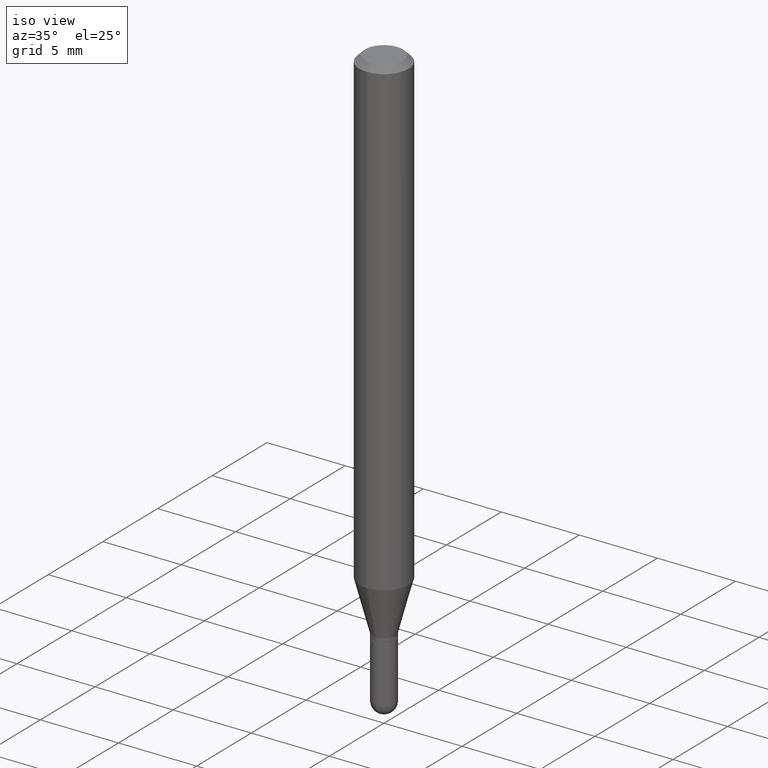
[diagram: clean part render]
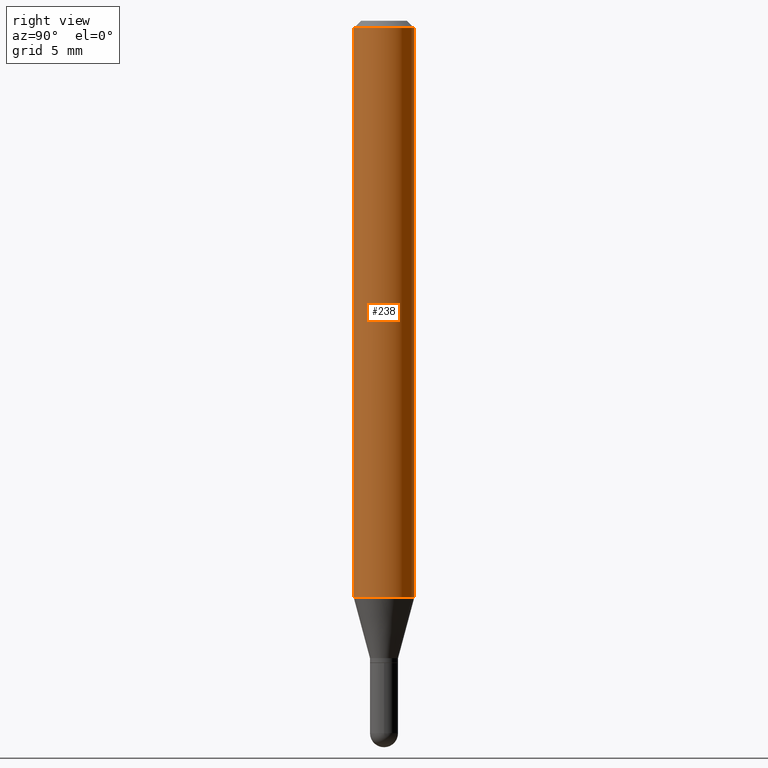
[diagram: tour spotlight — one face highlighted and labeled with its STEP entity id]
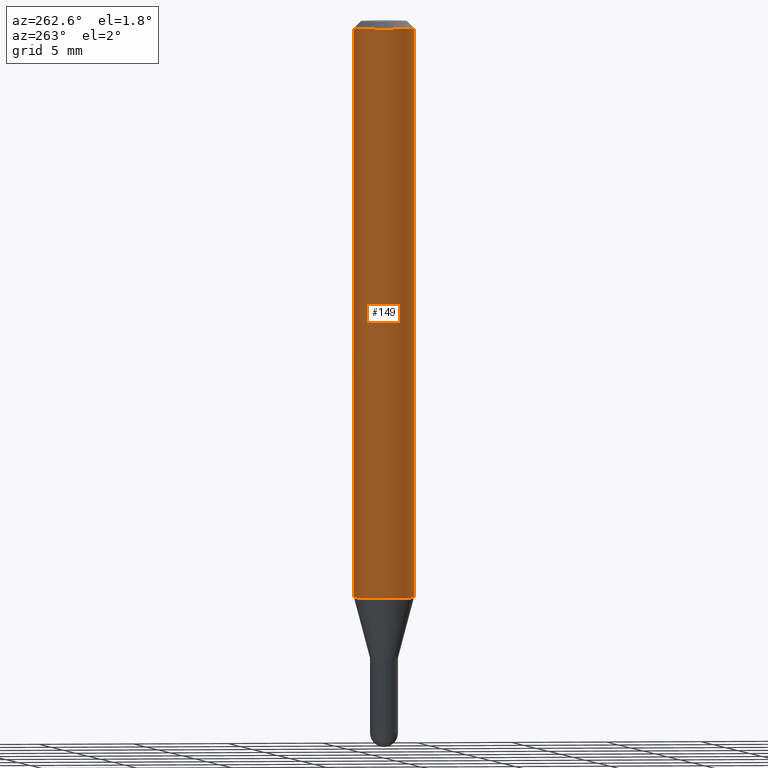
[diagram: tour spotlight — one face highlighted and labeled with its STEP entity id]
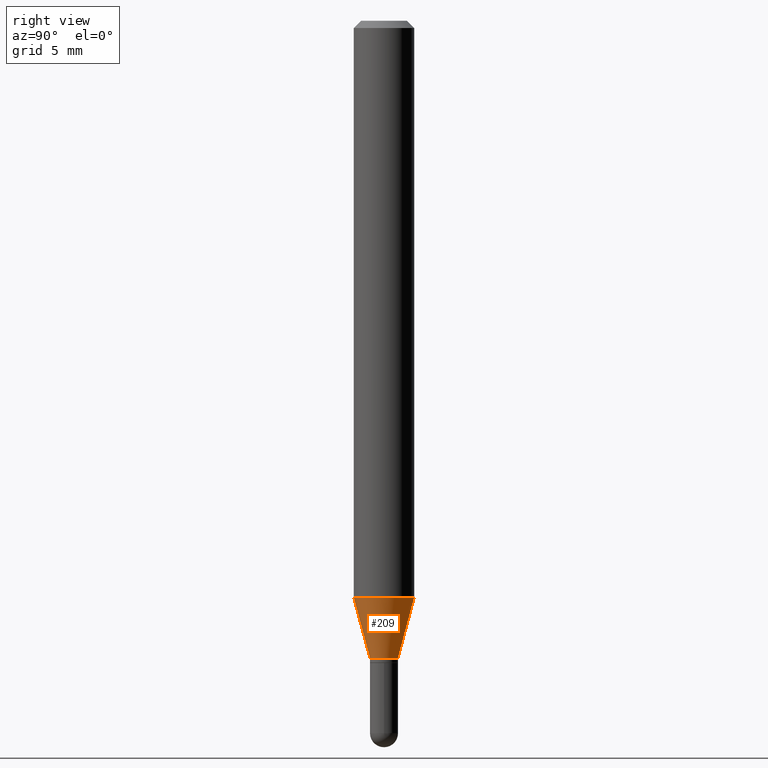
[diagram: tour spotlight — one face highlighted and labeled with its STEP entity id]
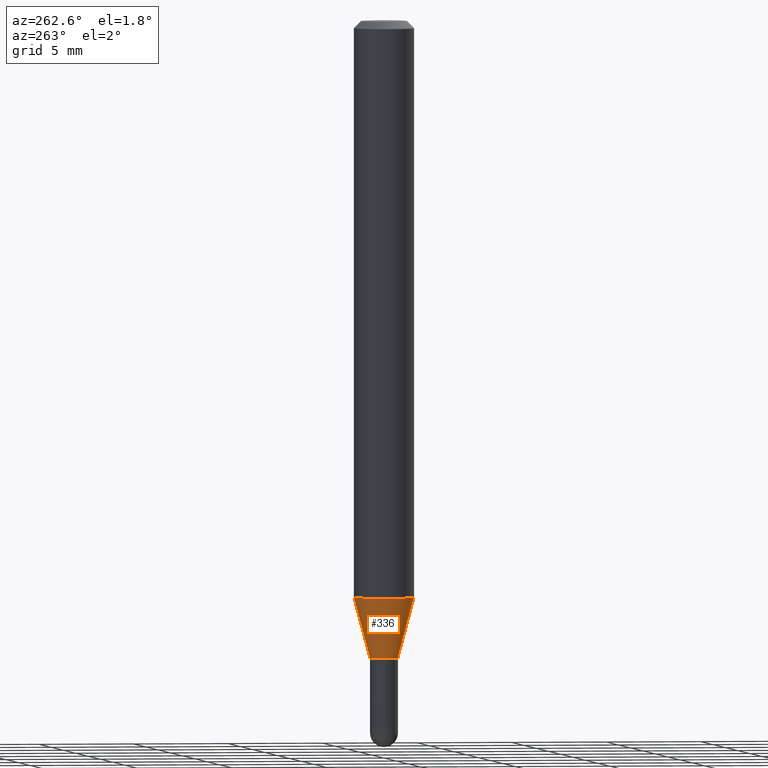
[diagram: tour spotlight — one face highlighted and labeled with its STEP entity id]
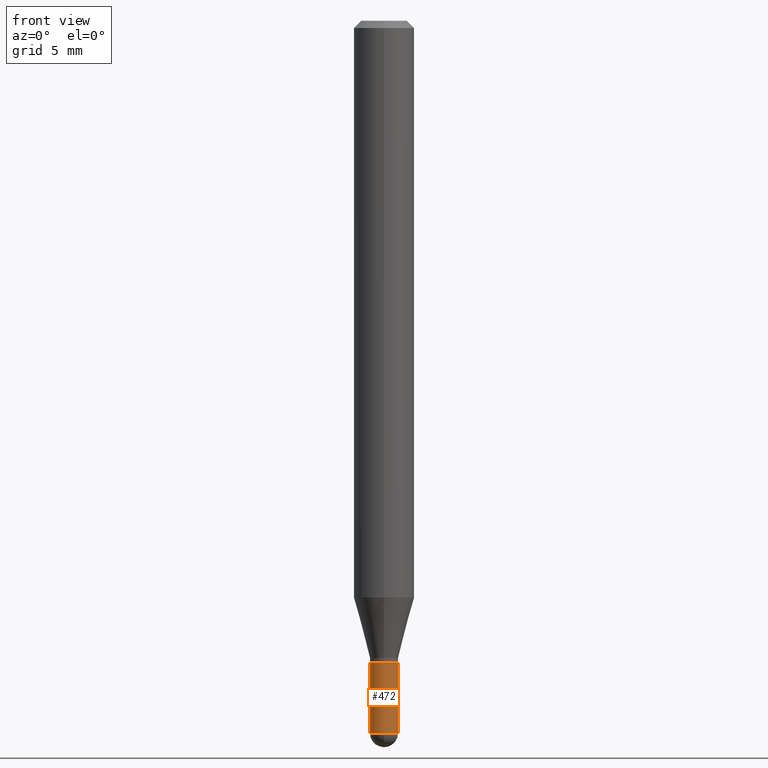
[diagram: tour spotlight — one face highlighted and labeled with its STEP entity id]
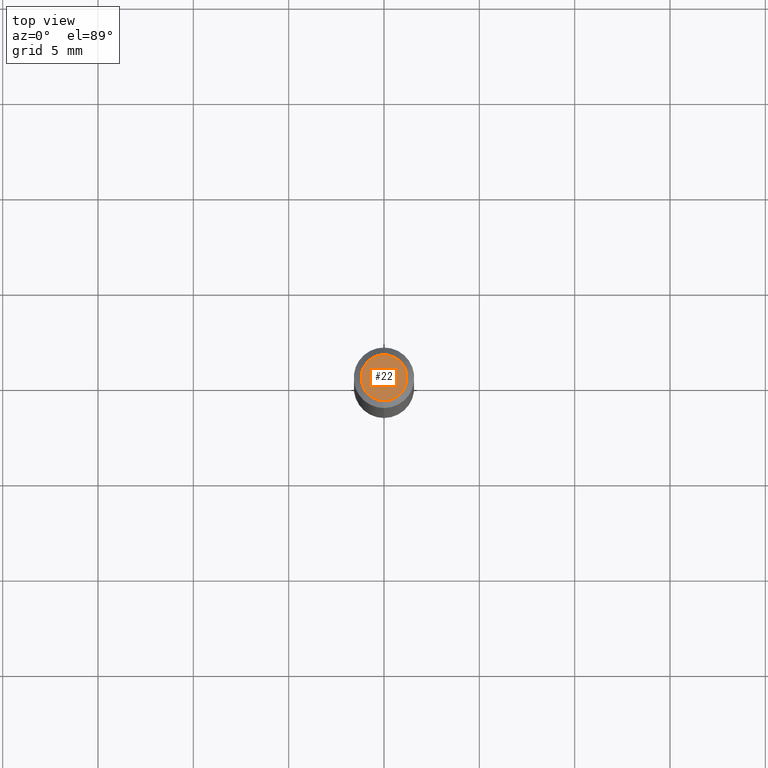
[diagram: tour spotlight — one face highlighted and labeled with its STEP entity id]
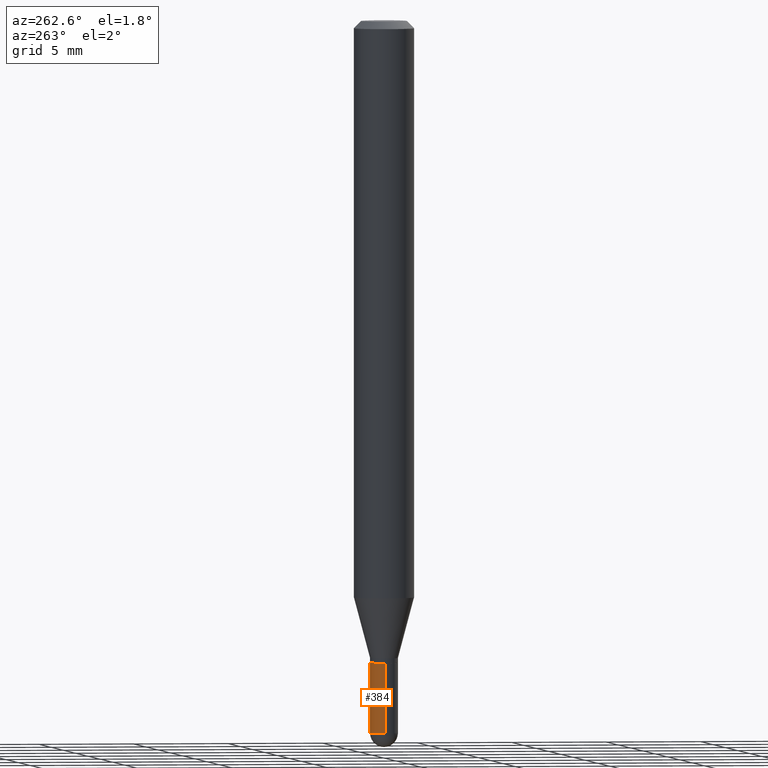
[diagram: tour spotlight — one face highlighted and labeled with its STEP entity id]
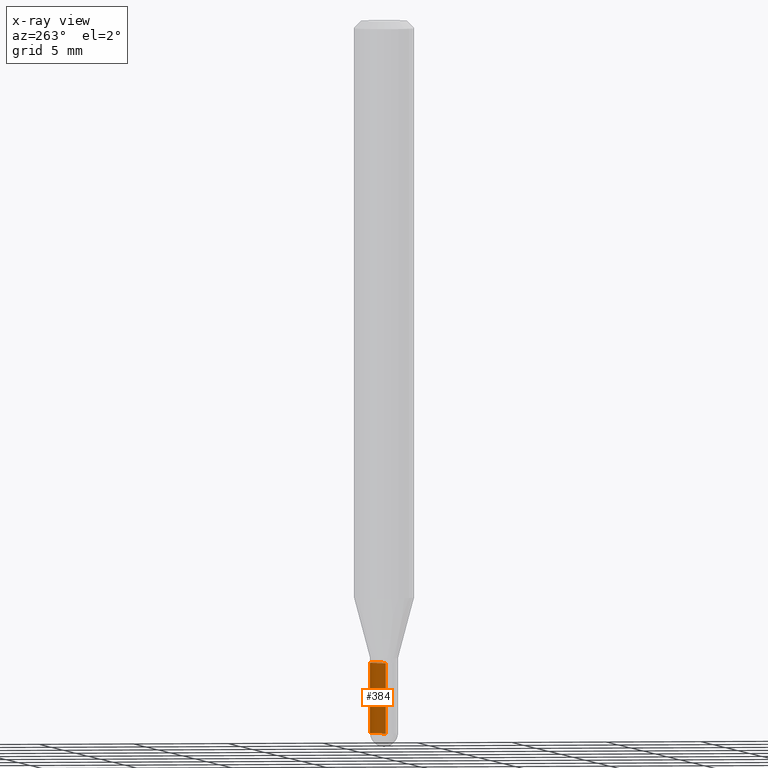
[diagram: x-ray of the same camera — body ghosted, this tour face saturated]
A machine part: a face-by-face anatomy tour. The part has 17 B-rep faces; the first image is the clean iso view, then the 7 largest visible faces are spotlighted one at a time (largest first), each with its STEP entity span.

Face 1 — right view, entity #238. In plain terms, the highlighted cylindrical surface (edge-blend (fillet) strip) has radius 1.5875 mm, axis along (-0, 0, 1).
Definition (entity closure, byte-faithful):
#3 = VECTOR ( 'NONE', #476, 39.37007874015748143 ) ;
#4 = EDGE_LOOP ( 'NONE', ( #121, #478, #127, #12 ) ) ;
#12 = ORIENTED_EDGE ( 'NONE', *, *, #438, .F. ) ;
#28 = CARTESIAN_POINT ( 'NONE',  ( 2.912491073195806680E-29, -4.158277694798067993E-15, -1.190976297946443330 ) ) ;
#71 = CARTESIAN_POINT ( 'NONE',  ( 0.000000000000000000, 0.000000000000000000, 0.000000000000000000 ) ) ;
#74 = DIRECTION ( 'NONE',  ( -6.982962677686265922E-15, -1.000000000000000000, 4.370956789862821150E-15 ) ) ;
#82 = AXIS2_PLACEMENT_3D ( 'NONE', #331, #101, #130 ) ;
#83 = CIRCLE ( 'NONE', #409, 0.06250000000000000000 ) ;
#91 = AXIS2_PLACEMENT_3D ( 'NONE', #71, #267, #466 ) ;
#92 = VERTEX_POINT ( 'NONE', #214 ) ;
#101 = DIRECTION ( 'NONE',  ( -2.445465185342234268E-29, 3.491486524096267237E-15, 1.000000000000000000 ) ) ;
#102 = LINE ( 'NONE', #265, #142 ) ;
#113 = EDGE_CURVE ( 'NONE', #354, #136, #196, .T. ) ;
#121 = ORIENTED_EDGE ( 'NONE', *, *, #477, .T. ) ;
#127 = ORIENTED_EDGE ( 'NONE', *, *, #113, .F. ) ;
#130 = DIRECTION ( 'NONE',  ( -6.982962677686265922E-15, -1.000000000000000000, 3.483106191921935554E-15 ) ) ;
#136 = VERTEX_POINT ( 'NONE', #181 ) ;
#142 = VECTOR ( 'NONE', #417, 39.37007874015748143 ) ;
#165 = CARTESIAN_POINT ( 'NONE',  ( 4.440892098500625669E-16, 0.06250000000000000000, -2.182179077560167023E-16 ) ) ;
#181 = CARTESIAN_POINT ( 'NONE',  ( 4.440892098500919026E-16, 0.06249999999999995837, -0.01500000000000054588 ) ) ;
#190 = CARTESIAN_POINT ( 'NONE',  ( -4.364351673553912750E-16, -0.06250000000000005551, -0.01500000000000011047 ) ) ;
#196 = CIRCLE ( 'NONE', #82, 0.06250000000000000000 ) ;
#214 = CARTESIAN_POINT ( 'NONE',  ( 4.440892098500914096E-16, 0.06249999999999581585, -1.190976297946443552 ) ) ;
#238 = ADVANCED_FACE ( 'NONE', ( #339 ), #420, .T. ) ;
#265 = CARTESIAN_POINT ( 'NONE',  ( -4.364351673553916201E-16, -0.06250000000000000000, 2.182179077560167023E-16 ) ) ;
#267 = DIRECTION ( 'NONE',  ( -2.445465185342234268E-29, 3.491486524096267237E-15, 1.000000000000000000 ) ) ;
#308 = DIRECTION ( 'NONE',  ( -2.445465185342234268E-29, 3.491486524096267237E-15, 1.000000000000000000 ) ) ;
#325 = LINE ( 'NONE', #165, #3 ) ;
#331 = CARTESIAN_POINT ( 'NONE',  ( 3.668197778013431818E-31, -5.237229786144515856E-17, -0.01500000000000032904 ) ) ;
#339 = FACE_OUTER_BOUND ( 'NONE', #4, .T. ) ;
#354 = VERTEX_POINT ( 'NONE', #190 ) ;
#409 = AXIS2_PLACEMENT_3D ( 'NONE', #28, #308, #74 ) ;
#417 = DIRECTION ( 'NONE',  ( -2.445465185342234268E-29, 3.491486524096267237E-15, 1.000000000000000000 ) ) ;
#420 = CYLINDRICAL_SURFACE ( 'NONE', #91, 0.06250000000000000000 ) ;
#438 = EDGE_CURVE ( 'NONE', #483, #354, #102, .T. ) ;
#466 = DIRECTION ( 'NONE',  ( -6.982962677686265922E-15, -1.000000000000000000, 3.491486524096267237E-15 ) ) ;
#468 = CARTESIAN_POINT ( 'NONE',  ( -4.364351673553626788E-16, -0.06250000000000417721, -1.190976297946443108 ) ) ;
#476 = DIRECTION ( 'NONE',  ( -2.445465185342234268E-29, 3.491486524096267237E-15, 1.000000000000000000 ) ) ;
#477 = EDGE_CURVE ( 'NONE', #483, #92, #83, .T. ) ;
#478 = ORIENTED_EDGE ( 'NONE', *, *, #510, .T. ) ;
#483 = VERTEX_POINT ( 'NONE', #468 ) ;
#510 = EDGE_CURVE ( 'NONE', #92, #136, #325, .T. ) ;

Face 2 — auxiliary view, entity #149. In plain terms, the highlighted cylindrical surface (edge-blend (fillet) strip) has radius 1.5875 mm, axis along (-0, 0, 1).
Definition (entity closure, byte-faithful):
#3 = VECTOR ( 'NONE', #476, 39.37007874015748143 ) ;
#18 = EDGE_CURVE ( 'NONE', #136, #354, #215, .T. ) ;
#29 = CARTESIAN_POINT ( 'NONE',  ( 0.000000000000000000, 0.000000000000000000, 0.000000000000000000 ) ) ;
#85 = ORIENTED_EDGE ( 'NONE', *, *, #277, .T. ) ;
#92 = VERTEX_POINT ( 'NONE', #214 ) ;
#102 = LINE ( 'NONE', #265, #142 ) ;
#131 = EDGE_LOOP ( 'NONE', ( #300, #85, #439, #482 ) ) ;
#136 = VERTEX_POINT ( 'NONE', #181 ) ;
#142 = VECTOR ( 'NONE', #417, 39.37007874015748143 ) ;
#149 = ADVANCED_FACE ( 'NONE', ( #188 ), #191, .T. ) ;
#150 = CIRCLE ( 'NONE', #364, 0.06250000000000000000 ) ;
#155 = DIRECTION ( 'NONE',  ( -2.445465185342234268E-29, 3.491486524096267237E-15, 1.000000000000000000 ) ) ;
#165 = CARTESIAN_POINT ( 'NONE',  ( 4.440892098500625669E-16, 0.06250000000000000000, -2.182179077560167023E-16 ) ) ;
#181 = CARTESIAN_POINT ( 'NONE',  ( 4.440892098500919026E-16, 0.06249999999999995837, -0.01500000000000054588 ) ) ;
#188 = FACE_OUTER_BOUND ( 'NONE', #131, .T. ) ;
#190 = CARTESIAN_POINT ( 'NONE',  ( -4.364351673553912750E-16, -0.06250000000000005551, -0.01500000000000011047 ) ) ;
#191 = CYLINDRICAL_SURFACE ( 'NONE', #467, 0.06250000000000000000 ) ;
#214 = CARTESIAN_POINT ( 'NONE',  ( 4.440892098500914096E-16, 0.06249999999999581585, -1.190976297946443552 ) ) ;
#215 = CIRCLE ( 'NONE', #444, 0.06250000000000000000 ) ;
#261 = DIRECTION ( 'NONE',  ( -6.982962677686265922E-15, -1.000000000000000000, 3.483106191921935554E-15 ) ) ;
#265 = CARTESIAN_POINT ( 'NONE',  ( -4.364351673553916201E-16, -0.06250000000000000000, 2.182179077560167023E-16 ) ) ;
#277 = EDGE_CURVE ( 'NONE', #92, #483, #150, .T. ) ;
#300 = ORIENTED_EDGE ( 'NONE', *, *, #510, .F. ) ;
#302 = CARTESIAN_POINT ( 'NONE',  ( 3.668197778013431818E-31, -5.237229786144515856E-17, -0.01500000000000032904 ) ) ;
#319 = DIRECTION ( 'NONE',  ( -6.982962677686265922E-15, -1.000000000000000000, 4.370956789862821150E-15 ) ) ;
#325 = LINE ( 'NONE', #165, #3 ) ;
#354 = VERTEX_POINT ( 'NONE', #190 ) ;
#364 = AXIS2_PLACEMENT_3D ( 'NONE', #509, #155, #319 ) ;
#381 = DIRECTION ( 'NONE',  ( -2.445465185342234268E-29, 3.491486524096267237E-15, 1.000000000000000000 ) ) ;
#391 = DIRECTION ( 'NONE',  ( -6.982962677686265922E-15, -1.000000000000000000, 3.491486524096267237E-15 ) ) ;
#417 = DIRECTION ( 'NONE',  ( -2.445465185342234268E-29, 3.491486524096267237E-15, 1.000000000000000000 ) ) ;
#438 = EDGE_CURVE ( 'NONE', #483, #354, #102, .T. ) ;
#439 = ORIENTED_EDGE ( 'NONE', *, *, #438, .T. ) ;
#444 = AXIS2_PLACEMENT_3D ( 'NONE', #302, #456, #261 ) ;
#456 = DIRECTION ( 'NONE',  ( -2.445465185342234268E-29, 3.491486524096267237E-15, 1.000000000000000000 ) ) ;
#467 = AXIS2_PLACEMENT_3D ( 'NONE', #29, #381, #391 ) ;
#468 = CARTESIAN_POINT ( 'NONE',  ( -4.364351673553626788E-16, -0.06250000000000417721, -1.190976297946443108 ) ) ;
#476 = DIRECTION ( 'NONE',  ( -2.445465185342234268E-29, 3.491486524096267237E-15, 1.000000000000000000 ) ) ;
#482 = ORIENTED_EDGE ( 'NONE', *, *, #18, .F. ) ;
#483 = VERTEX_POINT ( 'NONE', #468 ) ;
#509 = CARTESIAN_POINT ( 'NONE',  ( 2.912491073195806680E-29, -4.158277694798067993E-15, -1.190976297946443330 ) ) ;
#510 = EDGE_CURVE ( 'NONE', #92, #136, #325, .T. ) ;

Face 3 — right view, entity #209. In plain terms, the highlighted conical surface has half-angle 15 deg.
Definition (entity closure, byte-faithful):
#14 = EDGE_CURVE ( 'NONE', #484, #92, #475, .T. ) ;
#16 = ORIENTED_EDGE ( 'NONE', *, *, #259, .F. ) ;
#26 = CARTESIAN_POINT ( 'NONE',  ( -2.025059176528689732E-16, -0.02900000000000451175, -1.316000000000000281 ) ) ;
#28 = CARTESIAN_POINT ( 'NONE',  ( 2.912491073195806680E-29, -4.158277694798067993E-15, -1.190976297946443330 ) ) ;
#37 = DIRECTION ( 'NONE',  ( -6.982962677686265922E-15, -1.000000000000000000, 0.000000000000000000 ) ) ;
#40 = CARTESIAN_POINT ( 'NONE',  ( 3.250733016102762484E-16, 0.02899999999999532813, -1.316000000000000281 ) ) ;
#63 = VECTOR ( 'NONE', #200, 39.37007874015748854 ) ;
#74 = DIRECTION ( 'NONE',  ( -6.982962677686265922E-15, -1.000000000000000000, 4.370956789862821150E-15 ) ) ;
#83 = CIRCLE ( 'NONE', #409, 0.06250000000000000000 ) ;
#84 = DIRECTION ( 'NONE',  ( -6.982962677686265922E-15, -1.000000000000000000, 0.000000000000000000 ) ) ;
#92 = VERTEX_POINT ( 'NONE', #214 ) ;
#96 = ORIENTED_EDGE ( 'NONE', *, *, #14, .T. ) ;
#98 = CIRCLE ( 'NONE', #289, 0.02899999999999992167 ) ;
#117 = CARTESIAN_POINT ( 'NONE',  ( 3.218232183910380981E-29, -4.594796265710689048E-15, -1.316000000000000281 ) ) ;
#123 = CARTESIAN_POINT ( 'NONE',  ( 2.060573933704606434E-16, 0.02899999999999532813, -1.316000000000000281 ) ) ;
#143 = FACE_OUTER_BOUND ( 'NONE', #360, .T. ) ;
#156 = ORIENTED_EDGE ( 'NONE', *, *, #477, .F. ) ;
#185 = DIRECTION ( 'NONE',  ( -2.445465185342234268E-29, 3.491486524096267237E-15, 1.000000000000000000 ) ) ;
#200 = DIRECTION ( 'NONE',  ( -1.807323732225332111E-15, -0.2588190451025184635, 0.9659258262890689783 ) ) ;
#209 = ADVANCED_FACE ( 'NONE', ( #143 ), #313, .T. ) ;
#211 = LINE ( 'NONE', #394, #63 ) ;
#214 = CARTESIAN_POINT ( 'NONE',  ( 4.440892098500914096E-16, 0.06249999999999581585, -1.190976297946443552 ) ) ;
#253 = AXIS2_PLACEMENT_3D ( 'NONE', #309, #185, #37 ) ;
#259 = EDGE_CURVE ( 'NONE', #370, #483, #211, .T. ) ;
#280 = VECTOR ( 'NONE', #415, 39.37007874015748143 ) ;
#289 = AXIS2_PLACEMENT_3D ( 'NONE', #117, #435, #84 ) ;
#295 = EDGE_CURVE ( 'NONE', #370, #484, #98, .T. ) ;
#308 = DIRECTION ( 'NONE',  ( -2.445465185342234268E-29, 3.491486524096267237E-15, 1.000000000000000000 ) ) ;
#309 = CARTESIAN_POINT ( 'NONE',  ( 3.218232183910380981E-29, -4.594796265710689048E-15, -1.316000000000000281 ) ) ;
#313 = CONICAL_SURFACE ( 'NONE', #253, 0.02899999999999992167, 0.2617993877991505736 ) ;
#360 = EDGE_LOOP ( 'NONE', ( #486, #96, #156, #16 ) ) ;
#370 = VERTEX_POINT ( 'NONE', #26 ) ;
#394 = CARTESIAN_POINT ( 'NONE',  ( -2.025059176528689732E-16, -0.02900000000000451175, -1.316000000000000281 ) ) ;
#409 = AXIS2_PLACEMENT_3D ( 'NONE', #28, #308, #74 ) ;
#415 = DIRECTION ( 'NONE',  ( 1.839019923739602287E-15, 0.2588190451025252359, 0.9659258262890670910 ) ) ;
#435 = DIRECTION ( 'NONE',  ( -2.445465185342234268E-29, 3.491486524096267237E-15, 1.000000000000000000 ) ) ;
#468 = CARTESIAN_POINT ( 'NONE',  ( -4.364351673553626788E-16, -0.06250000000000417721, -1.190976297946443108 ) ) ;
#475 = LINE ( 'NONE', #123, #280 ) ;
#477 = EDGE_CURVE ( 'NONE', #483, #92, #83, .T. ) ;
#483 = VERTEX_POINT ( 'NONE', #468 ) ;
#484 = VERTEX_POINT ( 'NONE', #40 ) ;
#486 = ORIENTED_EDGE ( 'NONE', *, *, #295, .T. ) ;

Face 4 — auxiliary view, entity #336. In plain terms, the highlighted conical surface has half-angle 15 deg.
Definition (entity closure, byte-faithful):
#14 = EDGE_CURVE ( 'NONE', #484, #92, #475, .T. ) ;
#19 = FACE_OUTER_BOUND ( 'NONE', #174, .T. ) ;
#26 = CARTESIAN_POINT ( 'NONE',  ( -2.025059176528689732E-16, -0.02900000000000451175, -1.316000000000000281 ) ) ;
#39 = AXIS2_PLACEMENT_3D ( 'NONE', #428, #78, #229 ) ;
#40 = CARTESIAN_POINT ( 'NONE',  ( 3.250733016102762484E-16, 0.02899999999999532813, -1.316000000000000281 ) ) ;
#49 = ORIENTED_EDGE ( 'NONE', *, *, #259, .T. ) ;
#61 = CARTESIAN_POINT ( 'NONE',  ( 3.218232183910380981E-29, -4.594796265710689048E-15, -1.316000000000000281 ) ) ;
#63 = VECTOR ( 'NONE', #200, 39.37007874015748854 ) ;
#78 = DIRECTION ( 'NONE',  ( -2.445465185342234268E-29, 3.491486524096267237E-15, 1.000000000000000000 ) ) ;
#92 = VERTEX_POINT ( 'NONE', #214 ) ;
#123 = CARTESIAN_POINT ( 'NONE',  ( 2.060573933704606434E-16, 0.02899999999999532813, -1.316000000000000281 ) ) ;
#144 = EDGE_CURVE ( 'NONE', #484, #370, #497, .T. ) ;
#150 = CIRCLE ( 'NONE', #364, 0.06250000000000000000 ) ;
#154 = ORIENTED_EDGE ( 'NONE', *, *, #277, .F. ) ;
#155 = DIRECTION ( 'NONE',  ( -2.445465185342234268E-29, 3.491486524096267237E-15, 1.000000000000000000 ) ) ;
#174 = EDGE_LOOP ( 'NONE', ( #399, #369, #49, #154 ) ) ;
#200 = DIRECTION ( 'NONE',  ( -1.807323732225332111E-15, -0.2588190451025184635, 0.9659258262890689783 ) ) ;
#211 = LINE ( 'NONE', #394, #63 ) ;
#214 = CARTESIAN_POINT ( 'NONE',  ( 4.440892098500914096E-16, 0.06249999999999581585, -1.190976297946443552 ) ) ;
#224 = DIRECTION ( 'NONE',  ( -2.445465185342234268E-29, 3.491486524096267237E-15, 1.000000000000000000 ) ) ;
#229 = DIRECTION ( 'NONE',  ( -6.982962677686265922E-15, -1.000000000000000000, 0.000000000000000000 ) ) ;
#232 = CONICAL_SURFACE ( 'NONE', #328, 0.02899999999999992167, 0.2617993877991505736 ) ;
#259 = EDGE_CURVE ( 'NONE', #370, #483, #211, .T. ) ;
#277 = EDGE_CURVE ( 'NONE', #92, #483, #150, .T. ) ;
#280 = VECTOR ( 'NONE', #415, 39.37007874015748143 ) ;
#310 = DIRECTION ( 'NONE',  ( -6.982962677686265922E-15, -1.000000000000000000, 0.000000000000000000 ) ) ;
#319 = DIRECTION ( 'NONE',  ( -6.982962677686265922E-15, -1.000000000000000000, 4.370956789862821150E-15 ) ) ;
#328 = AXIS2_PLACEMENT_3D ( 'NONE', #61, #224, #310 ) ;
#336 = ADVANCED_FACE ( 'NONE', ( #19 ), #232, .T. ) ;
#364 = AXIS2_PLACEMENT_3D ( 'NONE', #509, #155, #319 ) ;
#369 = ORIENTED_EDGE ( 'NONE', *, *, #144, .T. ) ;
#370 = VERTEX_POINT ( 'NONE', #26 ) ;
#394 = CARTESIAN_POINT ( 'NONE',  ( -2.025059176528689732E-16, -0.02900000000000451175, -1.316000000000000281 ) ) ;
#399 = ORIENTED_EDGE ( 'NONE', *, *, #14, .F. ) ;
#415 = DIRECTION ( 'NONE',  ( 1.839019923739602287E-15, 0.2588190451025252359, 0.9659258262890670910 ) ) ;
#428 = CARTESIAN_POINT ( 'NONE',  ( 3.218232183910380981E-29, -4.594796265710689048E-15, -1.316000000000000281 ) ) ;
#468 = CARTESIAN_POINT ( 'NONE',  ( -4.364351673553626788E-16, -0.06250000000000417721, -1.190976297946443108 ) ) ;
#475 = LINE ( 'NONE', #123, #280 ) ;
#483 = VERTEX_POINT ( 'NONE', #468 ) ;
#484 = VERTEX_POINT ( 'NONE', #40 ) ;
#497 = CIRCLE ( 'NONE', #39, 0.02899999999999992167 ) ;
#509 = CARTESIAN_POINT ( 'NONE',  ( 2.912491073195806680E-29, -4.158277694798067993E-15, -1.190976297946443330 ) ) ;

Face 5 — front view, entity #472. In plain terms, the highlighted cylindrical surface (edge-blend (fillet) strip) has radius 0.7366 mm, axis along (-0, 0, 1).
Definition (entity closure, byte-faithful):
#32 = DIRECTION ( 'NONE',  ( 1.000000000000000000, -6.982962677686265922E-15, 0.000000000000000000 ) ) ;
#33 = DIRECTION ( 'NONE',  ( 1.000000000000000000, -6.982962677686265922E-15, 0.000000000000000000 ) ) ;
#41 = ORIENTED_EDGE ( 'NONE', *, *, #221, .F. ) ;
#52 = CIRCLE ( 'NONE', #179, 0.02900000000000000147 ) ;
#75 = CARTESIAN_POINT ( 'NONE',  ( -0.02900000000000000147, -4.676779259001710305E-15, -1.471000000000000307 ) ) ;
#87 = VERTEX_POINT ( 'NONE', #176 ) ;
#97 = ORIENTED_EDGE ( 'NONE', *, *, #167, .F. ) ;
#108 = VERTEX_POINT ( 'NONE', #223 ) ;
#129 = ORIENTED_EDGE ( 'NONE', *, *, #141, .T. ) ;
#133 = VECTOR ( 'NONE', #208, 39.37007874015748143 ) ;
#137 = DIRECTION ( 'NONE',  ( -2.445468806185136597E-29, 3.491481338843145583E-15, 1.000000000000000000 ) ) ;
#141 = EDGE_CURVE ( 'NONE', #251, #449, #52, .T. ) ;
#147 = DIRECTION ( 'NONE',  ( 1.000000000000000000, -6.982962677686265922E-15, 0.000000000000000000 ) ) ;
#148 = FACE_OUTER_BOUND ( 'NONE', #366, .T. ) ;
#162 = AXIS2_PLACEMENT_3D ( 'NONE', #304, #424, #32 ) ;
#167 = EDGE_CURVE ( 'NONE', #251, #108, #272, .T. ) ;
#176 = CARTESIAN_POINT ( 'NONE',  ( 0.02900000000000000147, -4.832210172958914360E-15, -1.326000000000000290 ) ) ;
#179 = AXIS2_PLACEMENT_3D ( 'NONE', #337, #137, #33 ) ;
#193 = CARTESIAN_POINT ( 'NONE',  ( 3.242691637001491818E-29, -4.629704255306012058E-15, -1.326000000000000290 ) ) ;
#201 = ORIENTED_EDGE ( 'NONE', *, *, #503, .T. ) ;
#208 = DIRECTION ( 'NONE',  ( -2.445468806185136877E-29, 3.491481338843145188E-15, 1.000000000000000000 ) ) ;
#221 = EDGE_CURVE ( 'NONE', #108, #87, #321, .T. ) ;
#223 = CARTESIAN_POINT ( 'NONE',  ( -0.02900000000000000147, -4.676779259001710305E-15, -1.326000000000000290 ) ) ;
#236 = DIRECTION ( 'NONE',  ( -2.445468806185136597E-29, 3.491481338843145583E-15, 1.000000000000000000 ) ) ;
#243 = AXIS2_PLACEMENT_3D ( 'NONE', #193, #464, #147 ) ;
#251 = VERTEX_POINT ( 'NONE', #75 ) ;
#272 = LINE ( 'NONE', #426, #423 ) ;
#283 = CIRCLE ( 'NONE', #162, 0.02900000000000000147 ) ;
#288 = LINE ( 'NONE', #317, #133 ) ;
#304 = CARTESIAN_POINT ( 'NONE',  ( 3.597284613898336423E-29, -5.135969049438267814E-15, -1.471000000000000307 ) ) ;
#312 = CYLINDRICAL_SURFACE ( 'NONE', #377, 0.02900000000000000147 ) ;
#317 = CARTESIAN_POINT ( 'NONE',  ( 0.02900000000000000147, -2.025059176529017356E-16, 1.414091264980821422E-30 ) ) ;
#321 = CIRCLE ( 'NONE', #243, 0.02900000000000000147 ) ;
#334 = VERTEX_POINT ( 'NONE', #367 ) ;
#337 = CARTESIAN_POINT ( 'NONE',  ( 3.597284613898336423E-29, -5.135969049438267814E-15, -1.471000000000000307 ) ) ;
#342 = CARTESIAN_POINT ( 'NONE',  ( -2.025059176528660396E-16, -0.02900000000000517442, -1.471000000000000307 ) ) ;
#366 = EDGE_LOOP ( 'NONE', ( #97, #129, #450, #201, #41 ) ) ;
#367 = CARTESIAN_POINT ( 'NONE',  ( 0.02900000000000000147, -5.085342570025041844E-15, -1.471000000000000307 ) ) ;
#377 = AXIS2_PLACEMENT_3D ( 'NONE', #382, #236, #463 ) ;
#382 = CARTESIAN_POINT ( 'NONE',  ( 0.000000000000000000, 0.000000000000000000, 0.000000000000000000 ) ) ;
#418 = EDGE_CURVE ( 'NONE', #449, #334, #283, .T. ) ;
#423 = VECTOR ( 'NONE', #500, 39.37007874015748143 ) ;
#424 = DIRECTION ( 'NONE',  ( -2.445468806185136597E-29, 3.491481338843145583E-15, 1.000000000000000000 ) ) ;
#426 = CARTESIAN_POINT ( 'NONE',  ( -0.02900000000000000147, 2.060573933704290644E-16, -1.426491176173922626E-30 ) ) ;
#449 = VERTEX_POINT ( 'NONE', #342 ) ;
#450 = ORIENTED_EDGE ( 'NONE', *, *, #418, .T. ) ;
#463 = DIRECTION ( 'NONE',  ( 1.000000000000000000, -6.982962677686266711E-15, 4.876176775795935793E-29 ) ) ;
#464 = DIRECTION ( 'NONE',  ( -2.445468806185136597E-29, 3.491481338843145583E-15, 1.000000000000000000 ) ) ;
#472 = ADVANCED_FACE ( 'NONE', ( #148 ), #312, .T. ) ;
#500 = DIRECTION ( 'NONE',  ( -2.445468806185136877E-29, 3.491481338843145188E-15, 1.000000000000000000 ) ) ;
#503 = EDGE_CURVE ( 'NONE', #334, #87, #288, .T. ) ;

Face 6 — top view, entity #22. In plain terms, the highlighted planar face has unit normal (0, -0, -1).
Definition (entity closure, byte-faithful):
#22 = ADVANCED_FACE ( 'NONE', ( #175 ), #448, .F. ) ;
#51 = DIRECTION ( 'NONE',  ( -2.445465185342234268E-29, 3.491486524096267237E-15, 1.000000000000000000 ) ) ;
#58 = DIRECTION ( 'NONE',  ( -6.982962677686266711E-15, -1.000000000000000000, 3.491486524096267631E-15 ) ) ;
#62 = DIRECTION ( 'NONE',  ( 6.982962677686265922E-15, 1.000000000000000000, -3.491486524096267237E-15 ) ) ;
#70 = EDGE_CURVE ( 'NONE', #204, #279, #170, .T. ) ;
#112 = CARTESIAN_POINT ( 'NONE',  ( -3.773273898774340269E-16, -0.04749999999999999362, -1.623010915180637317E-16 ) ) ;
#132 = AXIS2_PLACEMENT_3D ( 'NONE', #257, #51, #58 ) ;
#170 = CIRCLE ( 'NONE', #132, 0.04749999999999999362 ) ;
#175 = FACE_OUTER_BOUND ( 'NONE', #281, .T. ) ;
#204 = VERTEX_POINT ( 'NONE', #112 ) ;
#234 = AXIS2_PLACEMENT_3D ( 'NONE', #357, #397, #430 ) ;
#257 = CARTESIAN_POINT ( 'NONE',  ( 8.024713339894958191E-45, -1.145719785908861744E-30, -3.281467014126364155E-16 ) ) ;
#279 = VERTEX_POINT ( 'NONE', #471 ) ;
#281 = EDGE_LOOP ( 'NONE', ( #327, #390 ) ) ;
#294 = CARTESIAN_POINT ( 'NONE',  ( 3.316907271900976096E-16, 0.04749999999999999362, -3.299189606008908670E-16 ) ) ;
#327 = ORIENTED_EDGE ( 'NONE', *, *, #490, .T. ) ;
#329 = DIRECTION ( 'NONE',  ( 2.445465185342233987E-29, -3.491486524096267237E-15, -1.000000000000000000 ) ) ;
#357 = CARTESIAN_POINT ( 'NONE',  ( 8.024713339894958191E-45, -1.145719785908861744E-30, -3.281467014126364155E-16 ) ) ;
#390 = ORIENTED_EDGE ( 'NONE', *, *, #70, .T. ) ;
#393 = AXIS2_PLACEMENT_3D ( 'NONE', #294, #329, #62 ) ;
#397 = DIRECTION ( 'NONE',  ( -2.445465185342234268E-29, 3.491486524096267237E-15, 1.000000000000000000 ) ) ;
#430 = DIRECTION ( 'NONE',  ( -6.982962677686266711E-15, -1.000000000000000000, 3.491486524096267631E-15 ) ) ;
#448 = PLANE ( 'NONE',  #393 ) ;
#453 = CIRCLE ( 'NONE', #234, 0.04749999999999999362 ) ;
#471 = CARTESIAN_POINT ( 'NONE',  ( 3.840629472727447874E-16, 0.04749999999999999362, -4.939923113072091241E-16 ) ) ;
#490 = EDGE_CURVE ( 'NONE', #279, #204, #453, .T. ) ;

Face 7 — auxiliary view, entity #384. An x-ray twin of the same camera follows (body ghosted, this face saturated) — the face is partly hidden behind the body. In plain terms, the highlighted cylindrical surface (edge-blend (fillet) strip) has radius 0.7366 mm, axis along (-0, 0, 1).
Definition (entity closure, byte-faithful):
#9 = CIRCLE ( 'NONE', #432, 0.02900000000000000147 ) ;
#13 = CARTESIAN_POINT ( 'NONE',  ( 3.597284613898336423E-29, -5.135969049438267814E-15, -1.471000000000000307 ) ) ;
#17 = DIRECTION ( 'NONE',  ( 1.000000000000000000, -6.982962677686265922E-15, 0.000000000000000000 ) ) ;
#27 = CARTESIAN_POINT ( 'NONE',  ( 3.597284613898336423E-29, -5.135969049438267814E-15, -1.471000000000000307 ) ) ;
#34 = EDGE_CURVE ( 'NONE', #334, #457, #9, .T. ) ;
#35 = CARTESIAN_POINT ( 'NONE',  ( 3.242691637001491818E-29, -4.629704255306012058E-15, -1.326000000000000290 ) ) ;
#75 = CARTESIAN_POINT ( 'NONE',  ( -0.02900000000000000147, -4.676779259001710305E-15, -1.471000000000000307 ) ) ;
#77 = DIRECTION ( 'NONE',  ( -2.445468806185136597E-29, 3.491481338843145583E-15, 1.000000000000000000 ) ) ;
#87 = VERTEX_POINT ( 'NONE', #176 ) ;
#93 = ORIENTED_EDGE ( 'NONE', *, *, #160, .T. ) ;
#94 = ORIENTED_EDGE ( 'NONE', *, *, #34, .T. ) ;
#108 = VERTEX_POINT ( 'NONE', #223 ) ;
#133 = VECTOR ( 'NONE', #208, 39.37007874015748143 ) ;
#138 = DIRECTION ( 'NONE',  ( -2.445468806185136597E-29, 3.491481338843145583E-15, 1.000000000000000000 ) ) ;
#146 = DIRECTION ( 'NONE',  ( 1.000000000000000000, -6.982962677686266711E-15, 4.876176775795935793E-29 ) ) ;
#160 = EDGE_CURVE ( 'NONE', #457, #251, #376, .T. ) ;
#167 = EDGE_CURVE ( 'NONE', #251, #108, #272, .T. ) ;
#169 = EDGE_LOOP ( 'NONE', ( #93, #433, #255, #493, #94 ) ) ;
#176 = CARTESIAN_POINT ( 'NONE',  ( 0.02900000000000000147, -4.832210172958914360E-15, -1.326000000000000290 ) ) ;
#184 = CARTESIAN_POINT ( 'NONE',  ( 0.000000000000000000, 0.000000000000000000, 0.000000000000000000 ) ) ;
#207 = AXIS2_PLACEMENT_3D ( 'NONE', #184, #138, #146 ) ;
#208 = DIRECTION ( 'NONE',  ( -2.445468806185136877E-29, 3.491481338843145188E-15, 1.000000000000000000 ) ) ;
#223 = CARTESIAN_POINT ( 'NONE',  ( -0.02900000000000000147, -4.676779259001710305E-15, -1.326000000000000290 ) ) ;
#251 = VERTEX_POINT ( 'NONE', #75 ) ;
#255 = ORIENTED_EDGE ( 'NONE', *, *, #359, .F. ) ;
#272 = LINE ( 'NONE', #426, #423 ) ;
#288 = LINE ( 'NONE', #317, #133 ) ;
#298 = DIRECTION ( 'NONE',  ( -2.445468806185136597E-29, 3.491481338843145583E-15, 1.000000000000000000 ) ) ;
#317 = CARTESIAN_POINT ( 'NONE',  ( 0.02900000000000000147, -2.025059176529017356E-16, 1.414091264980821422E-30 ) ) ;
#334 = VERTEX_POINT ( 'NONE', #367 ) ;
#340 = AXIS2_PLACEMENT_3D ( 'NONE', #27, #506, #462 ) ;
#344 = CYLINDRICAL_SURFACE ( 'NONE', #207, 0.02900000000000000147 ) ;
#359 = EDGE_CURVE ( 'NONE', #87, #108, #416, .T. ) ;
#367 = CARTESIAN_POINT ( 'NONE',  ( 0.02900000000000000147, -5.085342570025041844E-15, -1.471000000000000307 ) ) ;
#376 = CIRCLE ( 'NONE', #340, 0.02900000000000000147 ) ;
#378 = FACE_OUTER_BOUND ( 'NONE', #169, .T. ) ;
#384 = ADVANCED_FACE ( 'NONE', ( #378 ), #344, .T. ) ;
#385 = DIRECTION ( 'NONE',  ( 1.000000000000000000, -6.982962677686265922E-15, 0.000000000000000000 ) ) ;
#416 = CIRCLE ( 'NONE', #434, 0.02900000000000000147 ) ;
#419 = CARTESIAN_POINT ( 'NONE',  ( 2.060573933704652780E-16, 0.02899999999999490485, -1.471000000000000307 ) ) ;
#423 = VECTOR ( 'NONE', #500, 39.37007874015748143 ) ;
#426 = CARTESIAN_POINT ( 'NONE',  ( -0.02900000000000000147, 2.060573933704290644E-16, -1.426491176173922626E-30 ) ) ;
#432 = AXIS2_PLACEMENT_3D ( 'NONE', #13, #298, #17 ) ;
#433 = ORIENTED_EDGE ( 'NONE', *, *, #167, .T. ) ;
#434 = AXIS2_PLACEMENT_3D ( 'NONE', #35, #77, #385 ) ;
#457 = VERTEX_POINT ( 'NONE', #419 ) ;
#462 = DIRECTION ( 'NONE',  ( 1.000000000000000000, -6.982962677686265922E-15, 0.000000000000000000 ) ) ;
#493 = ORIENTED_EDGE ( 'NONE', *, *, #503, .F. ) ;
#500 = DIRECTION ( 'NONE',  ( -2.445468806185136877E-29, 3.491481338843145188E-15, 1.000000000000000000 ) ) ;
#503 = EDGE_CURVE ( 'NONE', #334, #87, #288, .T. ) ;
#506 = DIRECTION ( 'NONE',  ( -2.445468806185136597E-29, 3.491481338843145583E-15, 1.000000000000000000 ) ) ;